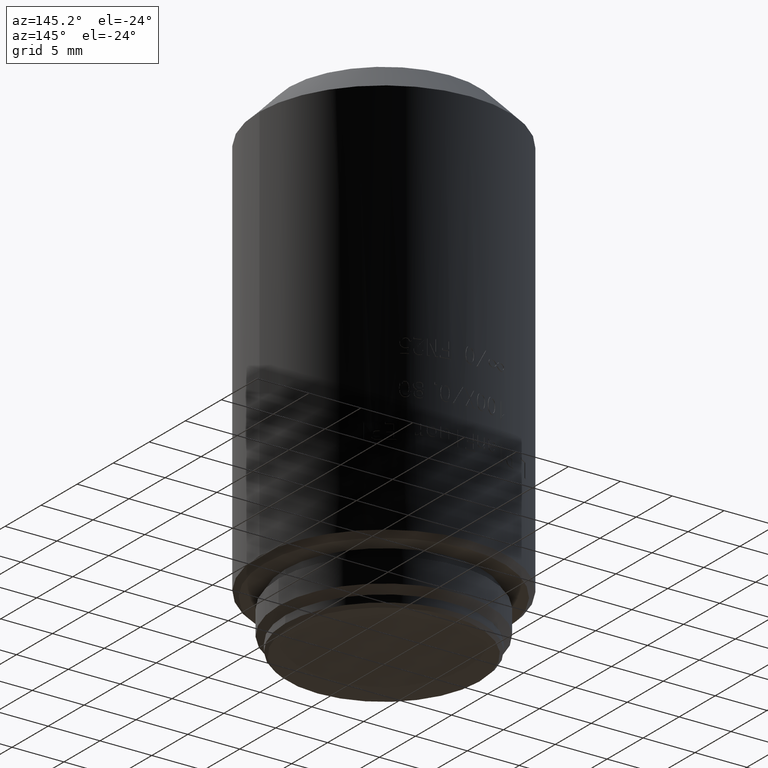
[diagram: clean part render]
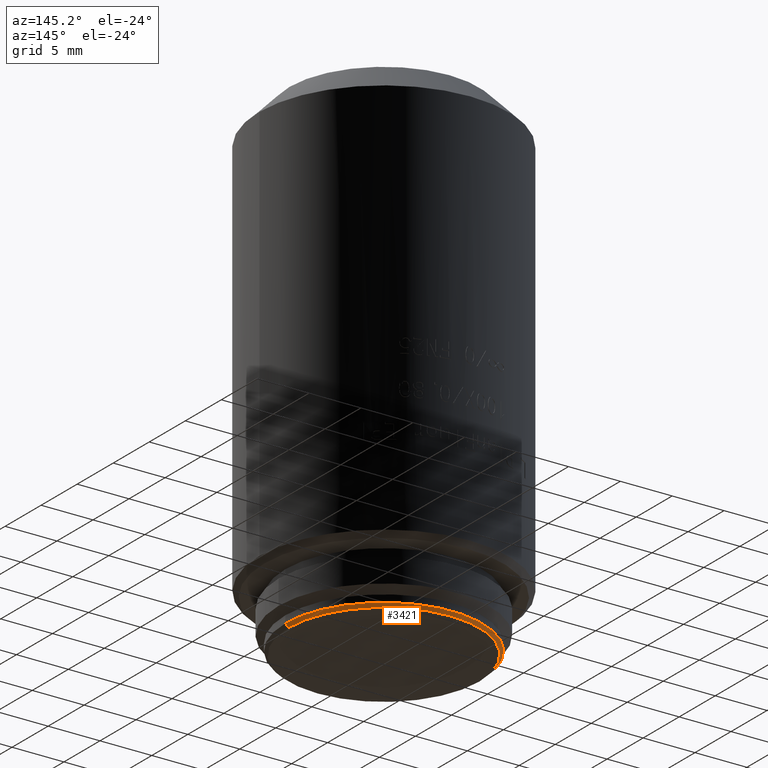
[diagram: same view with one face highlighted and labeled with its STEP entity id]
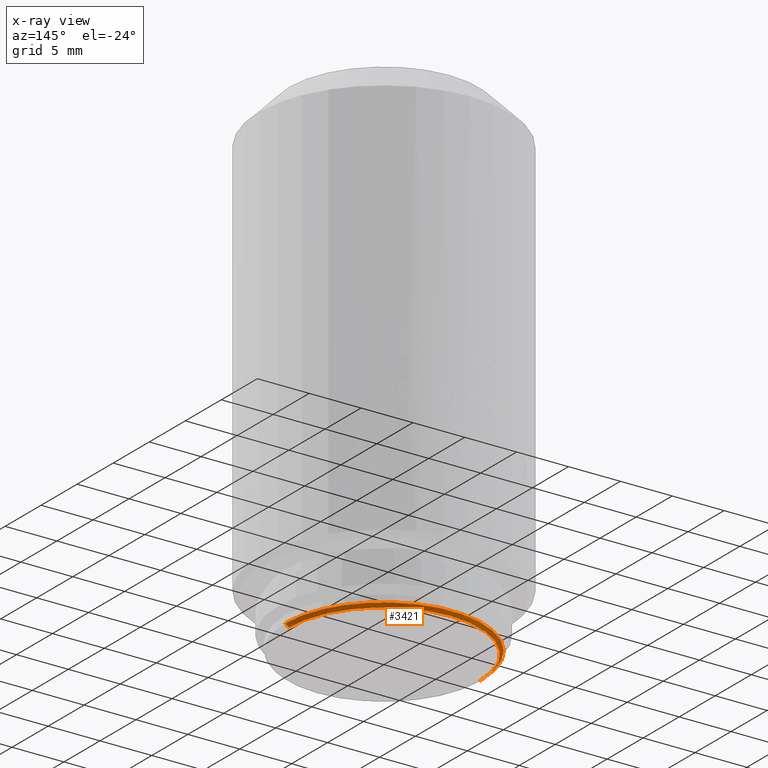
[diagram: x-ray of the same camera — body ghosted, the highlighted face saturated]
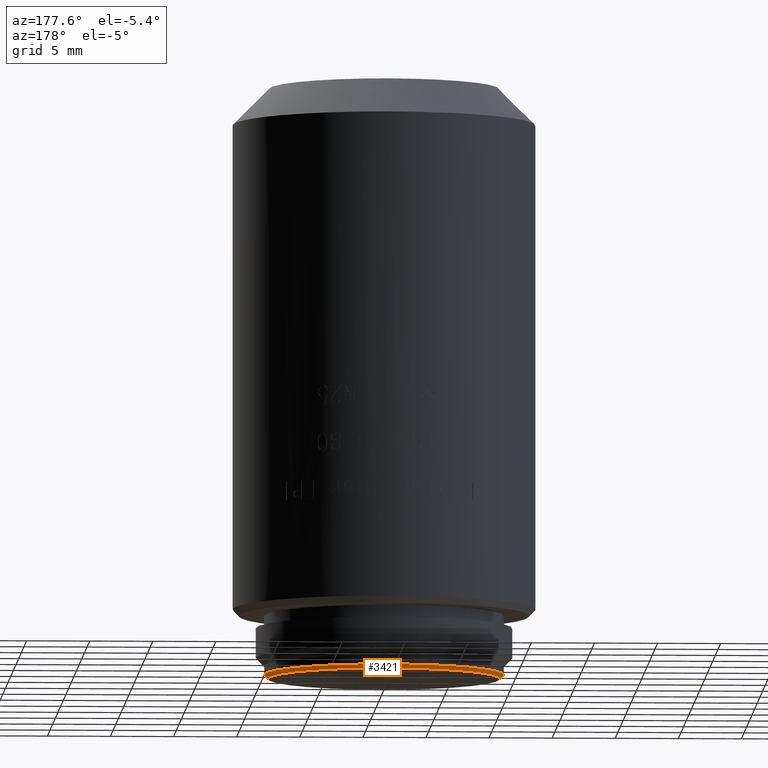
[diagram: same view with one face highlighted and labeled with its STEP entity id]
A machine part, auxiliary view. The second image highlights one B-rep face of the part: STEP entity #3421.
The next image is the same camera in x-ray: the body ghosted, the highlighted face saturated — about 0% of this face is hidden behind the body in this view.
A second angle (auxiliary view) of the same face is appended — the face is thin or edge-on in the first view.
In plain terms, the highlighted conical surface has half-angle 45 deg.
Its self-contained STEP definition (entity closure, byte-faithful):
#372 = CARTESIAN_POINT ( 'NONE',  ( -9.199999999999999289, 1.126675055215564822E-15, 0.000000000000000000 ) ) ;
#1310 = CARTESIAN_POINT ( 'NONE',  ( 9.199999999999999289, 0.000000000000000000, 0.000000000000000000 ) ) ;
#1482 = CONICAL_SURFACE ( 'NONE', #21260, 9.199999999999999289, 0.7853981633974362886 ) ;
#2150 = CARTESIAN_POINT ( 'NONE',  ( -9.199999999999999289, 1.145044757202775252E-15, 0.000000000000000000 ) ) ;
#3097 = DIRECTION ( 'NONE',  ( 0.000000000000000000, 0.000000000000000000, 1.000000000000000000 ) ) ;
#3421 = ADVANCED_FACE ( 'NONE', ( #17097 ), #1482, .T. ) ;
#6703 = DIRECTION ( 'NONE',  ( -0.7071067811865391350, 8.659560562354830553E-17, 0.7071067811865560104 ) ) ;
#6750 = CIRCLE ( 'NONE', #21775, 9.199999999999999289 ) ;
#7141 = VECTOR ( 'NONE', #6703, 999.9999999999998863 ) ;
#9066 = ORIENTED_EDGE ( 'NONE', *, *, #18166, .F. ) ;
#9342 = ORIENTED_EDGE ( 'NONE', *, *, #25116, .F. ) ;
#9648 = LINE ( 'NONE', #1310, #14041 ) ;
#10492 = VERTEX_POINT ( 'NONE', #21626 ) ;
#11037 = DIRECTION ( 'NONE',  ( 1.000000000000000000, 0.000000000000000000, 0.000000000000000000 ) ) ;
#12353 = LINE ( 'NONE', #372, #7141 ) ;
#12380 = CARTESIAN_POINT ( 'NONE',  ( 9.199999999999999289, 0.000000000000000000, 0.000000000000000000 ) ) ;
#12403 = CIRCLE ( 'NONE', #21442, 9.500000000000000000 ) ;
#12614 = DIRECTION ( 'NONE',  ( 1.000000000000000000, 0.000000000000000000, 0.000000000000000000 ) ) ;
#13762 = EDGE_CURVE ( 'NONE', #16281, #19742, #12353, .T. ) ;
#14041 = VECTOR ( 'NONE', #19745, 999.9999999999998863 ) ;
#15130 = VERTEX_POINT ( 'NONE', #12380 ) ;
#16281 = VERTEX_POINT ( 'NONE', #2150 ) ;
#17097 = FACE_OUTER_BOUND ( 'NONE', #20677, .T. ) ;
#17226 = CARTESIAN_POINT ( 'NONE',  ( 0.000000000000000000, 0.000000000000000000, 0.000000000000000000 ) ) ;
#18160 = ORIENTED_EDGE ( 'NONE', *, *, #21610, .F. ) ;
#18166 = EDGE_CURVE ( 'NONE', #15130, #10492, #9648, .T. ) ;
#19717 = DIRECTION ( 'NONE',  ( 1.000000000000000000, 0.000000000000000000, 0.000000000000000000 ) ) ;
#19742 = VERTEX_POINT ( 'NONE', #24975 ) ;
#19745 = DIRECTION ( 'NONE',  ( 0.7071067811865391350, 0.000000000000000000, 0.7071067811865560104 ) ) ;
#20677 = EDGE_LOOP ( 'NONE', ( #9342, #22052, #18160, #9066 ) ) ;
#20963 = CARTESIAN_POINT ( 'NONE',  ( 0.000000000000000000, 0.000000000000000000, 0.000000000000000000 ) ) ;
#21260 = AXIS2_PLACEMENT_3D ( 'NONE', #17226, #3097, #11037 ) ;
#21442 = AXIS2_PLACEMENT_3D ( 'NONE', #23630, #26399, #19717 ) ;
#21610 = EDGE_CURVE ( 'NONE', #10492, #19742, #12403, .T. ) ;
#21626 = CARTESIAN_POINT ( 'NONE',  ( 9.500000000000000000, 0.000000000000000000, 0.3000000000000069833 ) ) ;
#21775 = AXIS2_PLACEMENT_3D ( 'NONE', #20963, #22973, #12614 ) ;
#22052 = ORIENTED_EDGE ( 'NONE', *, *, #13762, .T. ) ;
#22973 = DIRECTION ( 'NONE',  ( 0.000000000000000000, 0.000000000000000000, -1.000000000000000000 ) ) ;
#23630 = CARTESIAN_POINT ( 'NONE',  ( 0.000000000000000000, 0.000000000000000000, 0.3000000000000069833 ) ) ;
#24975 = CARTESIAN_POINT ( 'NONE',  ( -9.500000000000000000, 1.163414459189985485E-15, 0.3000000000000069833 ) ) ;
#25116 = EDGE_CURVE ( 'NONE', #16281, #15130, #6750, .T. ) ;
#26399 = DIRECTION ( 'NONE',  ( 0.000000000000000000, 0.000000000000000000, 1.000000000000000000 ) ) ;